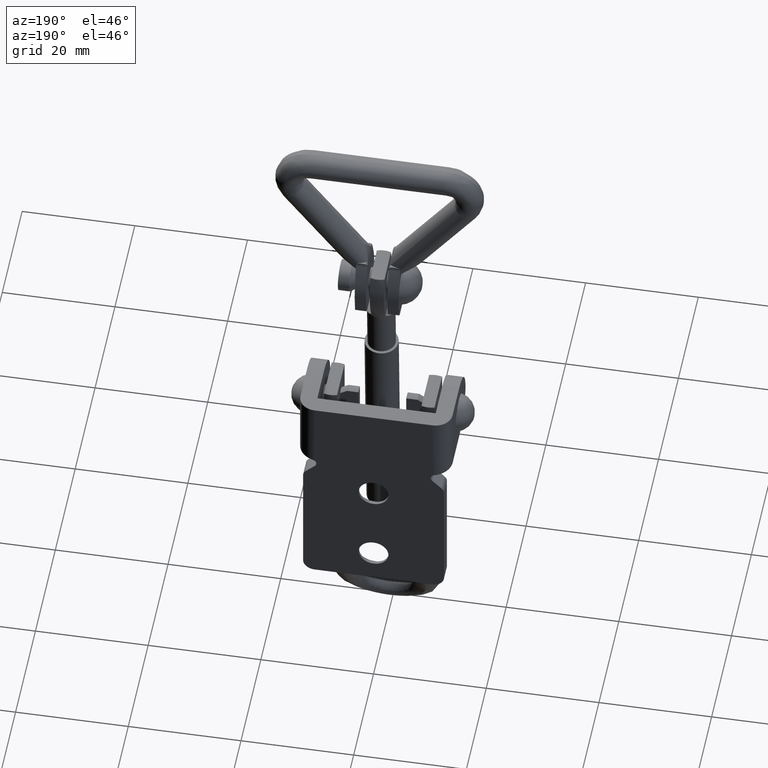
[diagram: clean part render]
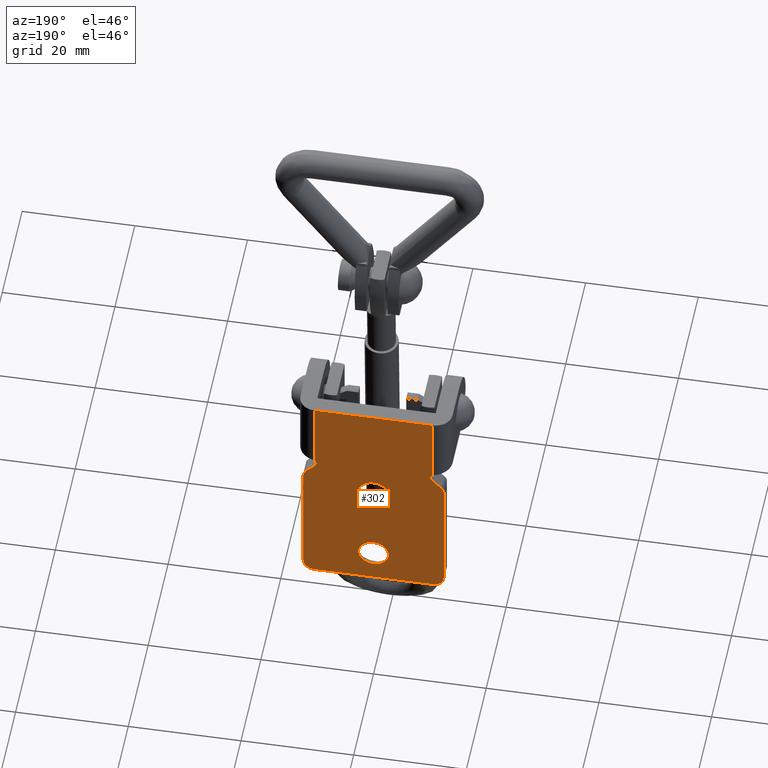
[diagram: same view with one face highlighted and labeled with its STEP entity id]
A machine part, auxiliary view. The second image highlights one B-rep face of the part: STEP entity #302.
In plain terms, the highlighted planar face has unit normal (0, 1, 0).
Its self-contained STEP definition (entity closure, byte-faithful):
#302=ADVANCED_FACE('',(#1225,#1226,#1227),#1224,.T.);
#1224=PLANE('',#3005);
#1225=FACE_OUTER_BOUND('',#3006,.T.);
#1226=FACE_BOUND('',#3007,.T.);
#1227=FACE_BOUND('',#3008,.T.);
#3002=CARTESIAN_POINT('',(-1.50000000000E+01,-4.64979166281E-11,-4.00000000000E+00));
#3003=DIRECTION('',(-0.00000000000E+00,1.00000000000E+00,0.00000000000E+00));
#3004=DIRECTION('',(0.00000000000E+00,0.00000000000E+00,1.00000000000E+00));
#3005=AXIS2_PLACEMENT_3D('',#3002,#3003,#3004);
#3006=EDGE_LOOP('',(#4478,#4479,#4480,#4481,#4482,#4483,#4484,#4485,#4486,#4487,#4488,#4489,#4490,#4491));
#3007=EDGE_LOOP('',(#4492,#4493));
#3008=EDGE_LOOP('',(#4494,#4495));
#4478=ORIENTED_EDGE('',*,*,#5261,.T.);
#4479=ORIENTED_EDGE('',*,*,#5239,.T.);
#4480=ORIENTED_EDGE('',*,*,#5262,.T.);
#4481=ORIENTED_EDGE('',*,*,#5263,.T.);
#4482=ORIENTED_EDGE('',*,*,#5264,.F.);
#4483=ORIENTED_EDGE('',*,*,#5265,.T.);
#4484=ORIENTED_EDGE('',*,*,#5266,.F.);
#4485=ORIENTED_EDGE('',*,*,#5267,.T.);
#4486=ORIENTED_EDGE('',*,*,#5268,.F.);
#4487=ORIENTED_EDGE('',*,*,#5269,.T.);
#4488=ORIENTED_EDGE('',*,*,#5270,.F.);
#4489=ORIENTED_EDGE('',*,*,#5271,.T.);
#4490=ORIENTED_EDGE('',*,*,#5272,.T.);
#4491=ORIENTED_EDGE('',*,*,#5273,.T.);
#4492=ORIENTED_EDGE('',*,*,#5274,.T.);
#4493=ORIENTED_EDGE('',*,*,#5275,.T.);
#4494=ORIENTED_EDGE('',*,*,#5276,.T.);
#4495=ORIENTED_EDGE('',*,*,#5277,.T.);
#5239=EDGE_CURVE('',#6825,#6846,#6853,.T.);
#5261=EDGE_CURVE('',#7004,#6825,#7005,.T.);
#5262=EDGE_CURVE('',#6846,#7011,#7012,.T.);
#5263=EDGE_CURVE('',#7011,#7018,#7019,.T.);
#5264=EDGE_CURVE('',#7025,#7018,#7026,.T.);
#5265=EDGE_CURVE('',#7025,#7032,#7033,.T.);
#5266=EDGE_CURVE('',#7039,#7032,#7040,.T.);
#5267=EDGE_CURVE('',#7039,#7046,#7047,.T.);
#5268=EDGE_CURVE('',#7053,#7046,#7054,.T.);
#5269=EDGE_CURVE('',#7053,#7060,#7061,.T.);
#5270=EDGE_CURVE('',#7067,#7060,#7068,.T.);
#5271=EDGE_CURVE('',#7067,#7074,#7075,.T.);
#5272=EDGE_CURVE('',#7074,#7081,#7082,.T.);
#5273=EDGE_CURVE('',#7081,#7004,#7088,.T.);
#5274=EDGE_CURVE('',#7094,#7095,#7096,.T.);
#5275=EDGE_CURVE('',#7095,#7094,#7102,.T.);
#5276=EDGE_CURVE('',#7108,#7109,#7110,.T.);
#5277=EDGE_CURVE('',#7109,#7108,#7116,.T.);
#6825=VERTEX_POINT('',#9872);
#6846=VERTEX_POINT('',#9885);
#6853=LINE('',#9890,#9891);
#7004=VERTEX_POINT('',#9985);
#7005=LINE('',#9986,#9987);
#7011=VERTEX_POINT('',#9989);
#7012=CIRCLE('',#9993,8.76710514268E-01);
#7018=VERTEX_POINT('',#9994);
#7019=LINE('',#9995,#9996);
#7025=VERTEX_POINT('',#9998);
#7026=CIRCLE('',#10002,1.50000000000E+00);
#7032=VERTEX_POINT('',#10003);
#7033=LINE('',#10004,#10005);
#7039=VERTEX_POINT('',#10007);
#7040=CIRCLE('',#10011,2.00000000000E+00);
#7046=VERTEX_POINT('',#10012);
#7047=LINE('',#10013,#10014);
#7053=VERTEX_POINT('',#10016);
#7054=CIRCLE('',#10020,2.00000000000E+00);
#7060=VERTEX_POINT('',#10021);
#7061=LINE('',#10022,#10023);
#7067=VERTEX_POINT('',#10025);
#7068=CIRCLE('',#10029,1.50000000000E+00);
#7074=VERTEX_POINT('',#10030);
#7075=LINE('',#10031,#10032);
#7081=VERTEX_POINT('',#10034);
#7082=CIRCLE('',#10038,8.76710514268E-01);
#7088=LINE('',#10039,#10040);
#7094=VERTEX_POINT('',#10042);
#7095=VERTEX_POINT('',#10043);
#7096=CIRCLE('',#10047,2.65000000000E+00);
#7102=CIRCLE('',#10051,2.65000000000E+00);
#7108=VERTEX_POINT('',#10052);
#7109=VERTEX_POINT('',#10053);
#7110=CIRCLE('',#10057,2.65000000000E+00);
#7116=CIRCLE('',#10061,2.65000000000E+00);
#9872=CARTESIAN_POINT('',(1.05000000000E+01,-4.65183447318E-11,4.00000000000E+01));
#9885=CARTESIAN_POINT('',(1.05000000000E+01,-4.65183447318E-11,2.73745118808E+01));
#9890=CARTESIAN_POINT('',(1.05000000000E+01,-4.64979166281E-11,4.00000000000E+01));
#9891=VECTOR('',#9892,1.26254881192E+01);
#9892=DIRECTION('',(0.00000000000E+00,0.00000000000E+00,-1.00000000000E+00));
#9985=CARTESIAN_POINT('',(-1.05000000000E+01,-4.65183447318E-11,4.00000000000E+01));
#9986=CARTESIAN_POINT('',(-1.05000000000E+01,-4.65183447318E-11,4.00000000000E+01));
#9987=VECTOR('',#9988,2.10000000000E+01);
#9988=DIRECTION('',(1.00000000000E+00,0.00000000000E+00,0.00000000000E+00));
#9989=CARTESIAN_POINT('',(1.04143651104E+01,-4.65183447318E-11,2.60462382804E+01));
#9990=CARTESIAN_POINT('',(1.10267105143E+01,-4.65183447318E-11,2.66736571455E+01));
#9991=DIRECTION('',(0.00000000000E+00,-1.00000000000E+00,0.00000000000E+00));
#9992=DIRECTION('',(-0.00000000000E+00,-0.00000000000E+00,-1.00000000000E+00));
#9993=AXIS2_PLACEMENT_3D('',#9990,#9991,#9992);
#9994=CARTESIAN_POINT('',(1.20476868827E+01,-4.65183447318E-11,2.44521563426E+01));
#9995=CARTESIAN_POINT('',(1.04143651104E+01,-4.65183447318E-11,2.60462382804E+01));
#9996=VECTOR('',#9997,2.28228771982E+00);
#9997=DIRECTION('',(7.15651124126E-01,0.00000000000E+00,-6.98457921809E-01));
#9998=CARTESIAN_POINT('',(1.25000000000E+01,-4.65183447318E-11,2.33786796564E+01));
#9999=CARTESIAN_POINT('',(1.10000000000E+01,-4.65183447318E-11,2.33786796564E+01));
#10000=DIRECTION('',(0.00000000000E+00,-1.00000000000E+00,0.00000000000E+00));
#10001=DIRECTION('',(-0.00000000000E+00,-0.00000000000E+00,-1.00000000000E+00));
#10002=AXIS2_PLACEMENT_3D('',#9999,#10000,#10001);
#10003=CARTESIAN_POINT('',(1.25000000000E+01,-4.65183447318E-11,2.00000000000E+00));
#10004=CARTESIAN_POINT('',(1.25000000000E+01,-4.65183447318E-11,2.33786796564E+01));
#10005=VECTOR('',#10006,2.13786796564E+01);
#10006=DIRECTION('',(0.00000000000E+00,0.00000000000E+00,-1.00000000000E+00));
#10007=CARTESIAN_POINT('',(1.05000000000E+01,-4.65183447318E-11,0.00000000000E+00));
#10008=CARTESIAN_POINT('',(1.05000000000E+01,-4.65183447318E-11,2.00000000000E+00));
#10009=DIRECTION('',(0.00000000000E+00,-1.00000000000E+00,0.00000000000E+00));
#10010=DIRECTION('',(-0.00000000000E+00,-0.00000000000E+00,-1.00000000000E+00));
#10011=AXIS2_PLACEMENT_3D('',#10008,#10009,#10010);
#10012=CARTESIAN_POINT('',(-1.05000000000E+01,-4.65183447318E-11,0.00000000000E+00));
#10013=CARTESIAN_POINT('',(1.05000000000E+01,-4.65183447318E-11,0.00000000000E+00));
#10014=VECTOR('',#10015,2.10000000000E+01);
#10015=DIRECTION('',(-1.00000000000E+00,0.00000000000E+00,0.00000000000E+00));
#10016=CARTESIAN_POINT('',(-1.25000000000E+01,-4.65183447318E-11,2.00000000000E+00));
#10017=CARTESIAN_POINT('',(-1.05000000000E+01,-4.65183447318E-11,2.00000000000E+00));
#10018=DIRECTION('',(0.00000000000E+00,-1.00000000000E+00,0.00000000000E+00));
#10019=DIRECTION('',(-0.00000000000E+00,-0.00000000000E+00,-1.00000000000E+00));
#10020=AXIS2_PLACEMENT_3D('',#10017,#10018,#10019);
#10021=CARTESIAN_POINT('',(-1.25000000000E+01,-4.65183447318E-11,2.33786796564E+01));
#10022=CARTESIAN_POINT('',(-1.25000000000E+01,-4.65183447318E-11,2.00000000000E+00));
#10023=VECTOR('',#10024,2.13786796564E+01);
#10024=DIRECTION('',(0.00000000000E+00,0.00000000000E+00,1.00000000000E+00));
#10025=CARTESIAN_POINT('',(-1.20476868827E+01,-4.65183447318E-11,2.44521563426E+01));
#10026=CARTESIAN_POINT('',(-1.10000000000E+01,-4.65183447318E-11,2.33786796564E+01));
#10027=DIRECTION('',(0.00000000000E+00,-1.00000000000E+00,0.00000000000E+00));
#10028=DIRECTION('',(-0.00000000000E+00,-0.00000000000E+00,-1.00000000000E+00));
#10029=AXIS2_PLACEMENT_3D('',#10026,#10027,#10028);
#10030=CARTESIAN_POINT('',(-1.04143651104E+01,-4.65183447318E-11,2.60462382804E+01));
#10031=CARTESIAN_POINT('',(-1.20476868827E+01,-4.65183447318E-11,2.44521563426E+01));
#10032=VECTOR('',#10033,2.28228771982E+00);
#10033=DIRECTION('',(7.15651124126E-01,0.00000000000E+00,6.98457921809E-01));
#10034=CARTESIAN_POINT('',(-1.05000000000E+01,-4.65183447318E-11,2.73745118808E+01));
#10035=CARTESIAN_POINT('',(-1.10267105143E+01,-4.65183447318E-11,2.66736571455E+01));
#10036=DIRECTION('',(0.00000000000E+00,-1.00000000000E+00,0.00000000000E+00));
#10037=DIRECTION('',(-0.00000000000E+00,-0.00000000000E+00,-1.00000000000E+00));
#10038=AXIS2_PLACEMENT_3D('',#10035,#10036,#10037);
#10039=CARTESIAN_POINT('',(-1.05000000000E+01,-4.64979166281E-11,2.73745118808E+01));
#10040=VECTOR('',#10041,1.26254881192E+01);
#10041=DIRECTION('',(0.00000000000E+00,0.00000000000E+00,1.00000000000E+00));
#10042=CARTESIAN_POINT('',(0.00000000000E+00,-4.65183447318E-11,2.36500000000E+01));
#10043=CARTESIAN_POINT('',(2.96059473233E-16,-4.65183447318E-11,1.83500000000E+01));
#10044=CARTESIAN_POINT('',(0.00000000000E+00,-4.65183447318E-11,2.10000000000E+01));
#10045=DIRECTION('',(0.00000000000E+00,-1.00000000000E+00,0.00000000000E+00));
#10046=DIRECTION('',(-1.22460635382E-16,0.00000000000E+00,1.00000000000E+00));
#10047=AXIS2_PLACEMENT_3D('',#10044,#10045,#10046);
#10048=CARTESIAN_POINT('',(0.00000000000E+00,-4.65183447318E-11,2.10000000000E+01));
#10049=DIRECTION('',(0.00000000000E+00,-1.00000000000E+00,0.00000000000E+00));
#10050=DIRECTION('',(-1.22460635382E-16,0.00000000000E+00,1.00000000000E+00));
#10051=AXIS2_PLACEMENT_3D('',#10048,#10049,#10050);
#10052=CARTESIAN_POINT('',(0.00000000000E+00,-4.65183447318E-11,8.65000000000E+00));
#10053=CARTESIAN_POINT('',(2.96059473233E-16,-4.65183447318E-11,3.35000000000E+00));
#10054=CARTESIAN_POINT('',(0.00000000000E+00,-4.65183447318E-11,6.00000000000E+00));
#10055=DIRECTION('',(0.00000000000E+00,-1.00000000000E+00,0.00000000000E+00));
#10056=DIRECTION('',(-1.22460635382E-16,0.00000000000E+00,1.00000000000E+00));
#10057=AXIS2_PLACEMENT_3D('',#10054,#10055,#10056);
#10058=CARTESIAN_POINT('',(0.00000000000E+00,-4.65183447318E-11,6.00000000000E+00));
#10059=DIRECTION('',(0.00000000000E+00,-1.00000000000E+00,0.00000000000E+00));
#10060=DIRECTION('',(-1.22460635382E-16,0.00000000000E+00,1.00000000000E+00));
#10061=AXIS2_PLACEMENT_3D('',#10058,#10059,#10060);